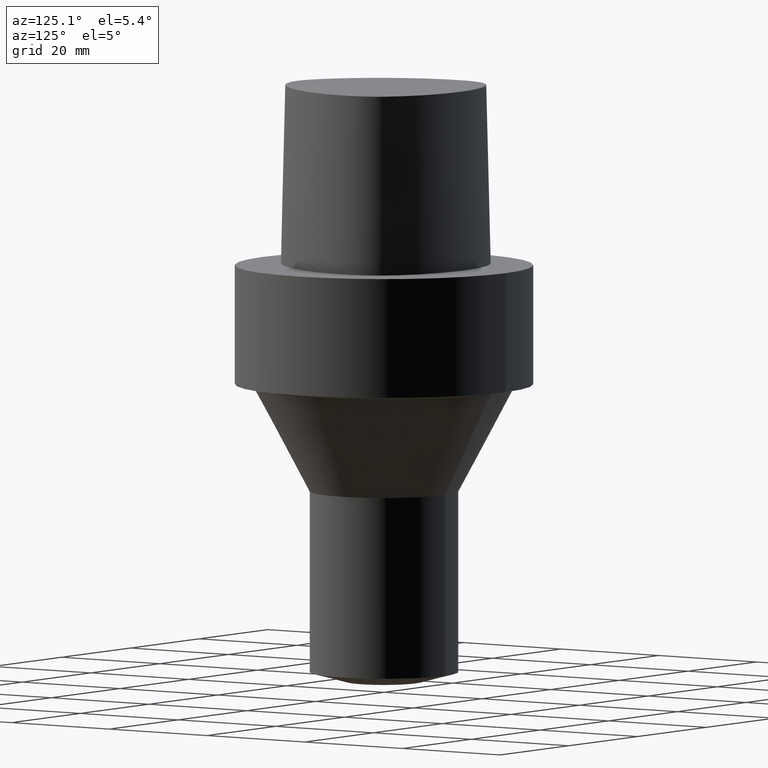
[diagram: clean part render]
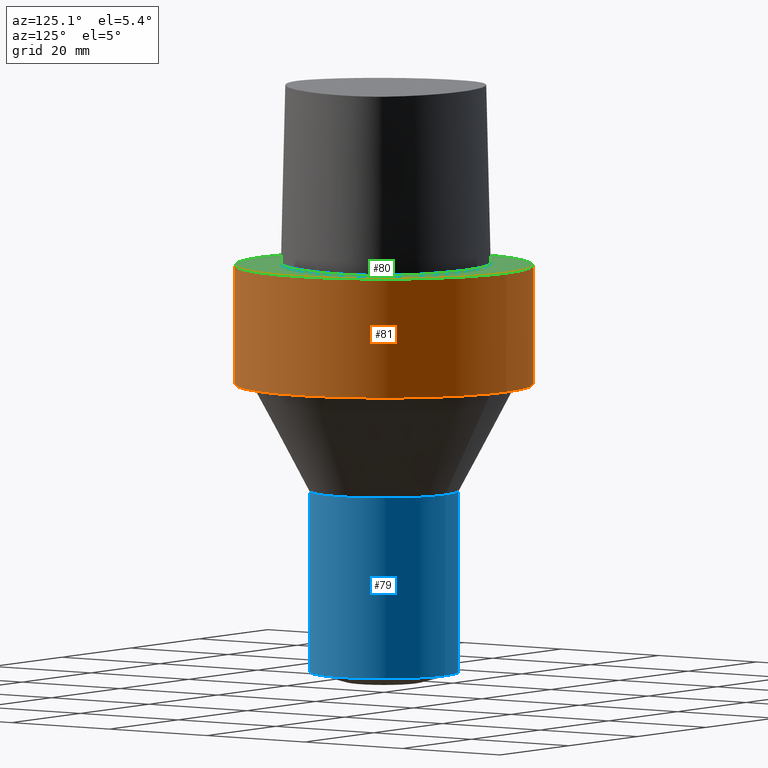
[diagram: same view with three faces highlighted in distinct colors, each labeled with its STEP entity id]
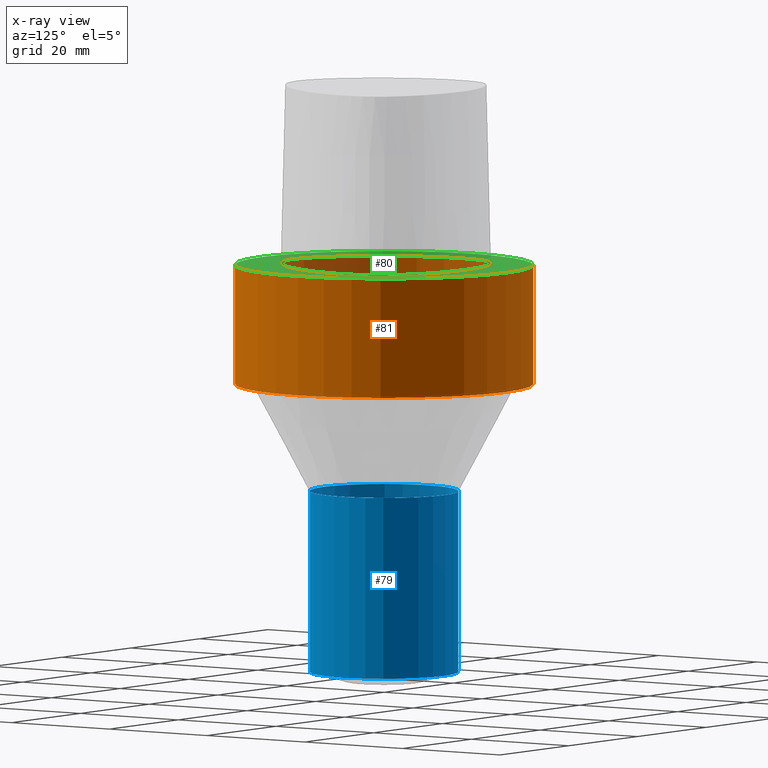
[diagram: x-ray of the same camera — body ghosted, the three highlighted faces saturated]
A machine part, auxiliary view with three faces highlighted in distinct colors.
The next image is the same camera in x-ray (body ghosted, the three faces saturated) — at least one of them is partly hidden behind the body in this view.
Their STEP definitions:

[orange] entity #81 — the highlighted cylindrical surface (bore or boss wall) has radius 24.99 mm, axis along (-0, -0, 1).
#81=ADVANCED_FACE('',(#101,#102),#103,.T.);
#101=FACE_BOUND('',#511,.T.);
#102=FACE_BOUND('',#512,.T.);
#103=CYLINDRICAL_SURFACE('',#513,24.99);
#511=EDGE_LOOP('',(#550));
#512=EDGE_LOOP('',(#551));
#513=AXIS2_PLACEMENT_3D('',#552,#553,#554);
#550=ORIENTED_EDGE('',*,*,#577,.F.);
#551=ORIENTED_EDGE('',*,*,#576,.T.);
#552=CARTESIAN_POINT('',(6.12323399573677E-016,1.22464679914735E-015,-10.0));
#553=DIRECTION('',(-6.12323399573677E-017,-1.22464679914735E-016,1.0));
#554=DIRECTION('',(-1.23259516440783E-032,1.0,1.22464679914735E-016));
#576=EDGE_CURVE('',#591,#591,#592,.T.);
#577=EDGE_CURVE('',#593,#593,#594,.T.);
#591=VERTEX_POINT('',#756);
#592=CIRCLE('',#757,24.99);
#593=VERTEX_POINT('',#758);
#594=CIRCLE('',#759,24.99);
#756=CARTESIAN_POINT('',(-3.08025531585517E-031,24.99,3.06039235106923E-015));
#757=AXIS2_PLACEMENT_3D('',#773,#774,#775);
#758=CARTESIAN_POINT('',(1.22464679914735E-015,24.99,-20.0));
#759=AXIS2_PLACEMENT_3D('',#776,#777,#778);
#773=CARTESIAN_POINT('',(0.0,0.0,0.0));
#774=DIRECTION('',(6.12323399573677E-017,1.22464679914735E-016,-1.0));
#775=DIRECTION('',(-1.23259516440783E-032,1.0,1.22464679914735E-016));
#776=CARTESIAN_POINT('',(1.22464679914735E-015,2.44929359829471E-015,-20.0));
#777=DIRECTION('',(6.12323399573677E-017,1.22464679914735E-016,-1.0));
#778=DIRECTION('',(-1.23259516440783E-032,1.0,1.22464679914735E-016));

[blue] entity #79 — the highlighted cylindrical surface (bore or boss wall) has radius 12.5 mm, axis along (-0, -0, 1).
#79=ADVANCED_FACE('',(#95,#96),#97,.T.);
#95=FACE_BOUND('',#505,.T.);
#96=FACE_BOUND('',#506,.T.);
#97=CYLINDRICAL_SURFACE('',#507,12.5);
#505=EDGE_LOOP('',(#540));
#506=EDGE_LOOP('',(#541));
#507=AXIS2_PLACEMENT_3D('',#542,#543,#544);
#540=ORIENTED_EDGE('',*,*,#574,.F.);
#541=ORIENTED_EDGE('',*,*,#575,.T.);
#542=CARTESIAN_POINT('',(3.25732488964029E-015,6.51464977928058E-015,-53.1961524238363));
#543=DIRECTION('',(-6.12323399573677E-017,-1.22464679914735E-016,1.0));
#544=DIRECTION('',(-1.23259516440783E-032,1.0,1.22464679914735E-016));
#574=EDGE_CURVE('',#587,#587,#588,.T.);
#575=EDGE_CURVE('',#589,#589,#590,.T.);
#587=VERTEX_POINT('',#752);
#588=CIRCLE('',#753,12.5);
#589=VERTEX_POINT('',#754);
#590=CIRCLE('',#755,12.5);
#752=CARTESIAN_POINT('',(4.18782086057867E-015,12.5,-68.3923048424148));
#753=AXIS2_PLACEMENT_3D('',#767,#768,#769);
#754=CARTESIAN_POINT('',(2.32682891870191E-015,12.5,-38.0000000052577));
#755=AXIS2_PLACEMENT_3D('',#770,#771,#772);
#767=CARTESIAN_POINT('',(4.18782086057867E-015,8.37564172115733E-015,-68.3923048424148));
#768=DIRECTION('',(6.12323399573677E-017,1.22464679914735E-016,-1.0));
#769=DIRECTION('',(-1.23259516440783E-032,1.0,1.22464679914735E-016));
#770=CARTESIAN_POINT('',(2.32682891870191E-015,4.65365783740382E-015,-38.0000000052577));
#771=DIRECTION('',(6.12323399573677E-017,1.22464679914735E-016,-1.0));
#772=DIRECTION('',(-1.23259516440783E-032,1.0,1.22464679914735E-016));

[green] entity #80 — the highlighted planar face has unit normal (-0, -0, 1).
#80=ADVANCED_FACE('',(#98,#99),#100,.T.);
#98=FACE_BOUND('',#508,.T.);
#99=FACE_OUTER_BOUND('',#509,.T.);
#100=PLANE('',#510);
#508=EDGE_LOOP('',(#545));
#509=EDGE_LOOP('',(#546));
#510=AXIS2_PLACEMENT_3D('',#547,#548,#549);
#545=ORIENTED_EDGE('',*,*,#571,.T.);
#546=ORIENTED_EDGE('',*,*,#576,.F.);
#547=CARTESIAN_POINT('',(-1.54012765792758E-031,12.495,1.53019617553462E-015));
#548=DIRECTION('',(-6.12323399573677E-017,-1.22464679914735E-016,1.0));
#549=DIRECTION('',(1.23259516440783E-032,-1.0,-1.22464679914735E-016));
#571=EDGE_CURVE('',#582,#582,#583,.T.);
#576=EDGE_CURVE('',#591,#591,#592,.T.);
#582=VERTEX_POINT('',#649);
#583=B_SPLINE_CURVE_WITH_KNOTS('',3,(#650,#651,#652,#653,#654,#655,#656,#657,#658,#659,#660,#661,#662,#663,#664,#665,#666,#667,#668,#669,#670,#671,#672,#673,#674,#675,#676,#677,#678,#679,#680,#681,#682,#683,#684,#685,#686,#687,#688,#689,#690,#691,#692,#693,#694,#695,#696,#697,#698,#699,#700,#701,#702,#703,#704,#705,#706,#707,#708,#709,#710,#711,#712,#713,#714,#715,#716,#717,#718,#719,#720,#721,#722,#723,#724,#725,#726,#727,#728,#729,#730,#731,#732,#733,#734,#735,#736,#737,#738,#739,#740,#741,#742,#743,#744,#745),.UNSPECIFIED.,.T.,.F.,(4,2,2,2,2,2,2,2,2,2,2,2,2,2,2,2,2,2,2,2,2,2,2,2,2,2,2,2,2,2,2,2,2,2,2,2,2,2,2,2,2,2,2,2,2,2,2,4),(0.0,0.000251979175567,0.023135829350767,0.046149078767971,0.068686553945372,0.09058948843834,0.11187442371895,0.132659030725504,0.153111474090064,0.173428097006866,0.193812703683075,0.214465113334926,0.235566638619369,0.257256396596226,0.279590584305387,0.302476275092963,0.325611612149197,0.348735785989546,0.371826971229282,0.39455923139207,0.416669726533691,0.438154204641074,0.459103554741756,0.479643077908811,0.50010643098029,0.520399705216369,0.54092682403315,0.561890845659905,0.583370991138857,0.605476574502583,0.62820876493626,0.65131550684809,0.674427687768046,0.697531018602722,0.720425222070344,0.742763449220249,0.764449723968905,0.785551037463572,0.806204240231889,0.826588983931571,0.846905402970388,0.867357715119018,0.88814171778586,0.909429413217286,0.931324749020081,0.953885589892717,0.976862732393428,1.0),.UNSPECIFIED.);
#591=VERTEX_POINT('',#756);
#592=CIRCLE('',#757,24.99);
#649=CARTESIAN_POINT('',(-0.00144332333831829,-18.693734925237,1.58949405722709E-031));
#650=CARTESIAN_POINT('',(-0.00144332333831829,-18.693734925237,1.58949405722709E-031));
#651=CARTESIAN_POINT('',(-0.0107097733408023,-18.6937739851458,1.18444691579815E-031));
#652=CARTESIAN_POINT('',(-0.0199759398304303,-18.6937986220233,1.90667064494336E-031));
#653=CARTESIAN_POINT('',(-0.87073259155424,-18.6947332287258,-2.46519032881566E-032));
#654=CARTESIAN_POINT('',(-1.7132146687811,-18.5561236138986,-1.72563323017096E-031));
#655=CARTESIAN_POINT('',(-3.34678034951543,-18.1076178270182,1.23259516440783E-031));
#656=CARTESIAN_POINT('',(-4.13763295357352,-17.7966649911857,0.0));
#657=CARTESIAN_POINT('',(-5.64401230436313,-17.0611782657116,-1.4791141972894E-031));
#658=CARTESIAN_POINT('',(-6.36074874666199,-16.6390568826018,9.86076131526265E-032));
#659=CARTESIAN_POINT('',(-7.71193183747336,-15.717785465073,-9.86076131526265E-032));
#660=CARTESIAN_POINT('',(-8.34816817062737,-15.221133209089,-1.97215226305253E-031));
#661=CARTESIAN_POINT('',(-9.54864267958622,-14.1801662707339,0.0));
#662=CARTESIAN_POINT('',(-10.1143778244459,-13.6375391489888,-9.86076131526265E-032));
#663=CARTESIAN_POINT('',(-11.1785439970871,-12.5139706700162,-9.86076131526265E-032));
#664=CARTESIAN_POINT('',(-11.6782474581115,-11.9342299113078,0.0));
#665=CARTESIAN_POINT('',(-12.6162342990191,-10.7421055435185,-1.97215226305253E-031));
#666=CARTESIAN_POINT('',(-13.055371557502,-10.1303892417647,0.0));
#667=CARTESIAN_POINT('',(-13.8770457728377,-8.87590863790404,9.86076131526265E-032));
#668=CARTESIAN_POINT('',(-14.2599388402702,-8.2333768267112,-9.86076131526265E-032));
#669=CARTESIAN_POINT('',(-14.97168833234,-6.91623888397976,1.97215226305253E-031));
#670=CARTESIAN_POINT('',(-15.3003608122286,-6.24153310972228,0.0));
#671=CARTESIAN_POINT('',(-15.9019181796067,-4.85709547419161,0.0));
#672=CARTESIAN_POINT('',(-16.1740130050164,-4.14701882283056,1.97215226305253E-031));
#673=CARTESIAN_POINT('',(-16.6580397097976,-2.68928374551173,0.0));
#674=CARTESIAN_POINT('',(-16.8685476043865,-1.9411430240201,0.0));
#675=CARTESIAN_POINT('',(-17.2177110849312,-0.406254182783721,0.0));
#676=CARTESIAN_POINT('',(-17.3541927925624,0.380994664903646,0.0));
#677=CARTESIAN_POINT('',(-17.5416073974851,1.99022033864964,0.0));
#678=CARTESIAN_POINT('',(-17.5899626525416,2.81255460248461,0.0));
#679=CARTESIAN_POINT('',(-17.563584952533,4.47617713465644,0.0));
#680=CARTESIAN_POINT('',(-17.4857707493695,5.31746225938347,0.0));
#681=CARTESIAN_POINT('',(-17.1712152948197,6.98496502795616,0.0));
#682=CARTESIAN_POINT('',(-16.932846471387,7.81104073212088,0.0));
#683=CARTESIAN_POINT('',(-16.2234989303146,9.36022258130064,0.0));
#684=CARTESIAN_POINT('',(-15.7525288634429,10.0833544868442,0.0));
#685=CARTESIAN_POINT('',(-14.6462939775209,11.3794173305263,0.0));
#686=CARTESIAN_POINT('',(-14.0112703709932,11.9525998966018,0.0));
#687=CARTESIAN_POINT('',(-12.6649577858213,12.9708269345166,0.0));
#688=CARTESIAN_POINT('',(-11.9549187103733,13.4176956956896,9.86076131526265E-032));
#689=CARTESIAN_POINT('',(-10.5004911910335,14.1970175551563,0.0));
#690=CARTESIAN_POINT('',(-9.7575533569854,14.5322819629711,-9.86076131526265E-032));
#691=CARTESIAN_POINT('',(-8.26254539063019,15.1133265717584,-9.86076131526265E-032));
#692=CARTESIAN_POINT('',(-7.51128946075537,15.3613193072948,-9.86076131526265E-032));
#693=CARTESIAN_POINT('',(-6.00522655029125,15.7739014771636,0.0));
#694=CARTESIAN_POINT('',(-5.25098149060303,15.940365829473,4.93038065763132E-032));
#695=CARTESIAN_POINT('',(-3.74452370137136,16.1783002530882,4.93038065763132E-032));
#696=CARTESIAN_POINT('',(-2.9925639102356,16.2517640462219,-1.97215226305253E-031));
#697=CARTESIAN_POINT('',(-1.48914620895443,16.3898646921674,-1.84889274661175E-031));
#698=CARTESIAN_POINT('',(-0.737689844422075,16.454322887119,1.84889274661175E-031));
#699=CARTESIAN_POINT('',(0.759326987696435,16.4536103338567,6.77927340424307E-032));
#700=CARTESIAN_POINT('',(1.50487089700432,16.3916719627081,-1.97215226305253E-031));
#701=CARTESIAN_POINT('',(3.00152605278829,16.2529050894156,-7.39557098644699E-032));
#702=CARTESIAN_POINT('',(3.75259609178933,16.1756990011092,-9.86076131526265E-032));
#703=CARTESIAN_POINT('',(5.25866006360267,15.9348272624441,-1.4791141972894E-031));
#704=CARTESIAN_POINT('',(6.01339669607053,15.7693347335975,1.4791141972894E-031));
#705=CARTESIAN_POINT('',(7.52174791015443,15.3636385273713,0.0));
#706=CARTESIAN_POINT('',(8.27488011859475,15.1217203315759,0.0));
#707=CARTESIAN_POINT('',(9.77128987676661,14.5452319544132,9.86076131526265E-032));
#708=CARTESIAN_POINT('',(10.5136604457977,14.20816965576,0.0));
#709=CARTESIAN_POINT('',(11.9637825858721,13.4211978486476,-9.86076131526265E-032));
#710=CARTESIAN_POINT('',(12.6699581239128,12.9683397391863,1.97215226305253E-031));
#711=CARTESIAN_POINT('',(14.0107896940302,11.9417697294217,0.0));
#712=CARTESIAN_POINT('',(14.6441161661191,11.3662092641098,0.0));
#713=CARTESIAN_POINT('',(15.7473444143777,10.0678607932392,-1.97215226305253E-031));
#714=CARTESIAN_POINT('',(16.2172279070315,9.34515014826243,0.0));
#715=CARTESIAN_POINT('',(16.9299748942786,7.79911649806176,-1.97215226305253E-031));
#716=CARTESIAN_POINT('',(17.1732678868715,6.97591096726165,0.0));
#717=CARTESIAN_POINT('',(17.4947165291087,5.31078187777496,0.0));
#718=CARTESIAN_POINT('',(17.5742122859752,4.46891080588121,0.0));
#719=CARTESIAN_POINT('',(17.5984503582426,2.80469955056706,0.0));
#720=CARTESIAN_POINT('',(17.5464797751086,1.98232636532396,0.0));
#721=CARTESIAN_POINT('',(17.3530324455179,0.373802434650424,0.0));
#722=CARTESIAN_POINT('',(17.2140873477037,-0.412741037255912,0.0));
#723=CARTESIAN_POINT('',(16.8640679933744,-1.94732109648072,0.0));
#724=CARTESIAN_POINT('',(16.6550051401061,-2.69581759912329,0.0));
#725=CARTESIAN_POINT('',(16.1721668251879,-4.15391144824405,0.0));
#726=CARTESIAN_POINT('',(15.8998720313717,-4.86400476772738,0.0));
#727=CARTESIAN_POINT('',(15.2976461182969,-6.24821889850589,0.0));
#728=CARTESIAN_POINT('',(14.9685089040774,-6.9226902547916,0.0));
#729=CARTESIAN_POINT('',(14.2562315235154,-8.23953226144279,0.0));
#730=CARTESIAN_POINT('',(13.8732695848357,-8.88199998589755,0.0));
#731=CARTESIAN_POINT('',(13.0515094984057,-10.1364217212122,0.0));
#732=CARTESIAN_POINT('',(12.612354568037,-10.7481421677501,0.0));
#733=CARTESIAN_POINT('',(11.6737441165097,-11.9397215871539,0.0));
#734=CARTESIAN_POINT('',(11.1734254860308,-12.5189032007719,0.0));
#735=CARTESIAN_POINT('',(10.1074745701417,-13.640998338336,-9.86076131526265E-032));
#736=CARTESIAN_POINT('',(9.54055189248609,-14.182694679151,0.0));
#737=CARTESIAN_POINT('',(8.33747886858352,-15.2200706351975,-9.86076131526265E-032));
#738=CARTESIAN_POINT('',(7.69981598148188,-15.7139994399403,0.0));
#739=CARTESIAN_POINT('',(6.35130494327661,-16.6404483507205,-4.93038065763132E-032));
#740=CARTESIAN_POINT('',(5.6388427285293,-17.0707143827691,-9.86076131526265E-032));
#741=CARTESIAN_POINT('',(4.1368842572046,-17.8149844980219,-9.86076131526265E-032));
#742=CARTESIAN_POINT('',(3.3461818724523,-18.1267181400899,2.46519032881566E-032));
#743=CARTESIAN_POINT('',(1.70267749900168,-18.5649567925168,1.72563323017096E-031));
#744=CARTESIAN_POINT('',(0.849421963398066,-18.6901483607448,0.0));
#745=CARTESIAN_POINT('',(-0.00144332333831829,-18.693734925237,1.58949405722709E-031));
#756=CARTESIAN_POINT('',(-3.08025531585517E-031,24.99,3.06039235106923E-015));
#757=AXIS2_PLACEMENT_3D('',#773,#774,#775);
#773=CARTESIAN_POINT('',(0.0,0.0,0.0));
#774=DIRECTION('',(6.12323399573677E-017,1.22464679914735E-016,-1.0));
#775=DIRECTION('',(-1.23259516440783E-032,1.0,1.22464679914735E-016));